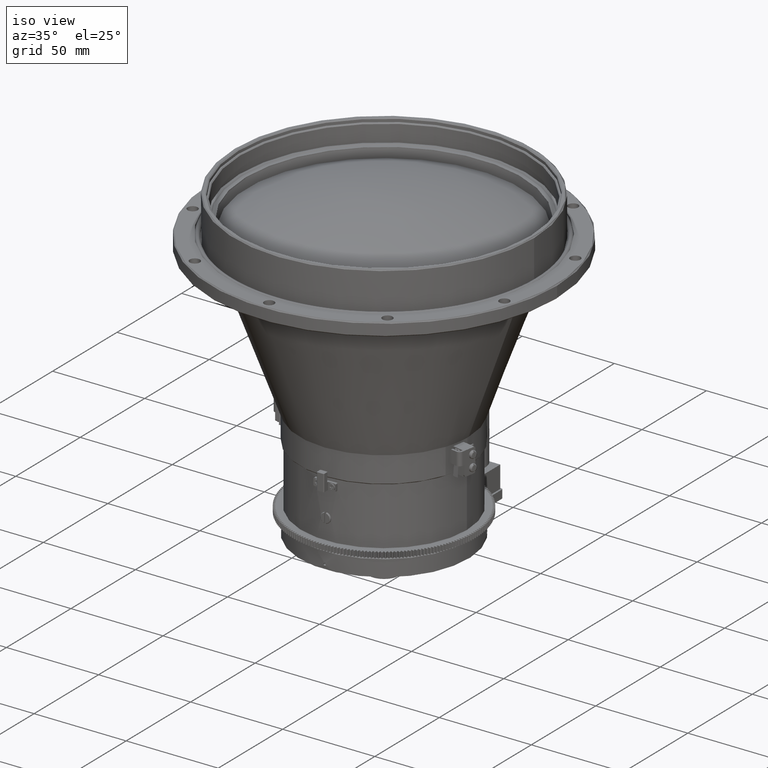
[diagram: clean part render]
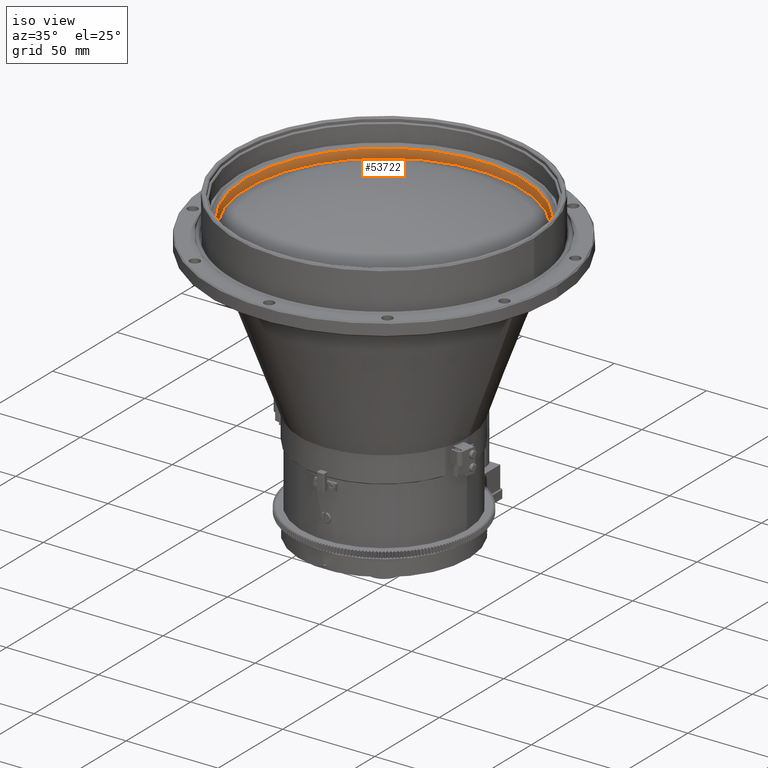
[diagram: same view with one face highlighted and labeled with its STEP entity id]
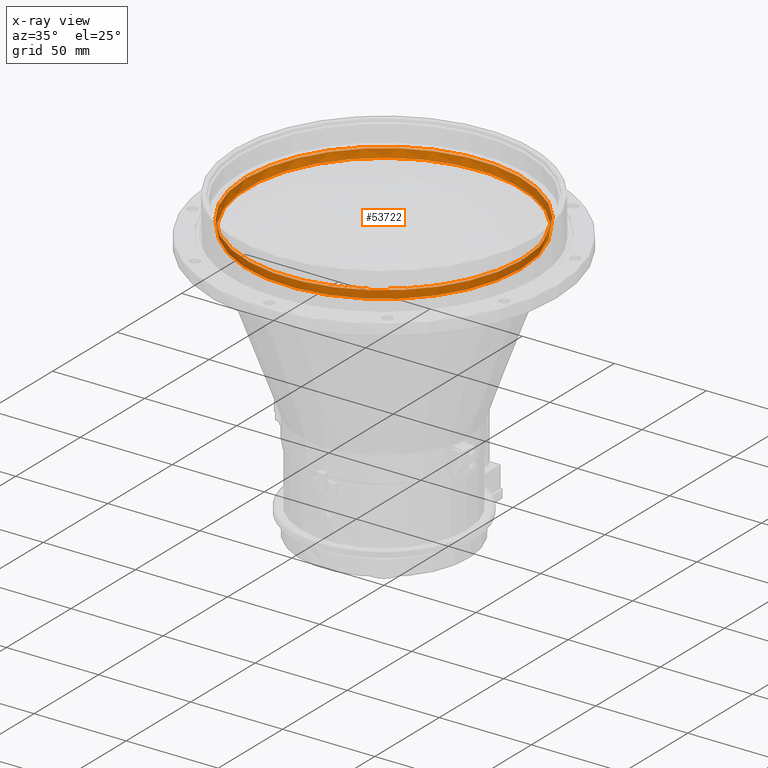
[diagram: x-ray of the same camera — body ghosted, the highlighted face saturated]
A machine part, iso view. The second image highlights one B-rep face of the part: STEP entity #53722.
The next image is the same camera in x-ray: the body ghosted, the highlighted face saturated — about 0% of this face is hidden behind the body in this view.
In plain terms, the highlighted conical surface has half-angle 8.393 deg.
Its self-contained STEP definition (entity closure, byte-faithful):
#2290 = VERTEX_POINT ( 'NONE', #6598 ) ;
#4469 = EDGE_CURVE ( 'NONE', #2290, #118596, #111276, .T. ) ;
#4581 = CARTESIAN_POINT ( 'NONE',  ( -75.00270542663358242, 0.4999905058496329491, -10.59591675109711240 ) ) ;
#5148 = EDGE_LOOP ( 'NONE', ( #100901 ) ) ;
#6598 = CARTESIAN_POINT ( 'NONE',  ( 75.00269861932846993, 0.5000631693755925866, -10.59609539321467864 ) ) ;
#6714 = B_SPLINE_CURVE_WITH_KNOTS ( 'NONE', 3,
 ( #21938, #77087, #75916, #86661 ),
 .UNSPECIFIED., .F., .F.,
 ( 4, 4 ),
 ( 0.000000000000000000, 1.000000000000000000 ),
 .UNSPECIFIED. ) ;
#6952 = CARTESIAN_POINT ( 'NONE',  ( 74.98787140005903495, 0.5000920502025483216, -10.72609505069669211 ) ) ;
#9740 = ORIENTED_EDGE ( 'NONE', *, *, #52431, .T. ) ;
#9960 = EDGE_LOOP ( 'NONE', ( #51677 ) ) ;
#11175 = EDGE_CURVE ( 'NONE', #118596, #46559, #116533, .T. ) ;
#12407 = CARTESIAN_POINT ( 'NONE',  ( -74.96600948718939605, 0.4999809680637991582, -10.85447161876259869 ) ) ;
#12504 = AXIS2_PLACEMENT_3D ( 'NONE', #86496, #22952, #59502 ) ;
#12903 = CIRCLE ( 'NONE', #45423, 75.03760365760280138 ) ;
#15323 = CARTESIAN_POINT ( 'NONE',  ( -74.94981966766651738, 0.4999999999999543698, -10.98398627726620624 ) ) ;
#19345 = DIRECTION ( 'NONE',  ( 1.000000000000000000, 0.000000000000000000, 0.000000000000000000 ) ) ;
#20249 = VERTEX_POINT ( 'NONE', #64727 ) ;
#20524 = EDGE_CURVE ( 'NONE', #46559, #115829, #31777, .T. ) ;
#21151 = CONICAL_SURFACE ( 'NONE', #99633, 75.03760365760280138, 0.1464916723753537375 ) ;
#21938 = CARTESIAN_POINT ( 'NONE',  ( -75.00269861932848414, -0.5000631693755610563, -10.59609539321468041 ) ) ;
#22869 = ORIENTED_EDGE ( 'NONE', *, *, #24414, .F. ) ;
#22952 = DIRECTION ( 'NONE',  ( 0.000000000000000000, 0.000000000000000000, 1.000000000000000000 ) ) ;
#23238 = VERTEX_POINT ( 'NONE', #89773 ) ;
#23832 = CARTESIAN_POINT ( 'NONE',  ( -75.00270542663358242, 0.4999905058496329491, -10.59591675109711240 ) ) ;
#24097 = ORIENTED_EDGE ( 'NONE', *, *, #4469, .F. ) ;
#24414 = EDGE_CURVE ( 'NONE', #20249, #30702, #50986, .T. ) ;
#24803 = AXIS2_PLACEMENT_3D ( 'NONE', #94113, #56328, #102480 ) ;
#28247 = CARTESIAN_POINT ( 'NONE',  ( 75.00269861932848414, -0.5000631693755699381, -10.59609539321468041 ) ) ;
#30702 = VERTEX_POINT ( 'NONE', #63217 ) ;
#31322 = EDGE_LOOP ( 'NONE', ( #22869, #9740, #89993, #99780 ) ) ;
#31777 = CIRCLE ( 'NONE', #79728, 74.95148743164070027 ) ;
#32745 = CARTESIAN_POINT ( 'NONE',  ( -74.94981966766651738, 0.4999999999999543698, -10.98398627726620624 ) ) ;
#33502 = DIRECTION ( 'NONE',  ( 0.000000000000000000, 0.000000000000000000, 1.000000000000000000 ) ) ;
#35720 = CARTESIAN_POINT ( 'NONE',  ( 74.96884607318615679, 0.4999651708213365686, -10.85504066383007427 ) ) ;
#36260 = DIRECTION ( 'NONE',  ( 1.000000000000000000, 0.000000000000000000, 0.000000000000000000 ) ) ;
#44737 = CARTESIAN_POINT ( 'NONE',  ( 74.94982020698880376, 0.4999191457199188005, -10.98398627711469722 ) ) ;
#44803 = CARTESIAN_POINT ( 'NONE',  ( 74.94982020701108638, -0.4999191457200425348, -10.98398627696348484 ) ) ;
#45423 = AXIS2_PLACEMENT_3D ( 'NONE', #98279, #33502, #116804 ) ;
#46559 = VERTEX_POINT ( 'NONE', #15323 ) ;
#48962 = CARTESIAN_POINT ( 'NONE',  ( -74.98219930693394986, 0.4999618538105425891, -10.72495696025843159 ) ) ;
#50986 = CIRCLE ( 'NONE', #104652, 75.00875113978989361 ) ;
#51246 = DIRECTION ( 'NONE',  ( 1.000000000000000000, 8.881784197001252323E-16, 1.157230853863278617E-16 ) ) ;
#51333 = CARTESIAN_POINT ( 'NONE',  ( 75.00269861932846993, 0.5000631693755925866, -10.59609539321467864 ) ) ;
#51677 = ORIENTED_EDGE ( 'NONE', *, *, #66884, .F. ) ;
#51849 = CARTESIAN_POINT ( 'NONE',  ( 0.000000000000000000, 0.000000000000000000, -10.98398627726593446 ) ) ;
#52431 = EDGE_CURVE ( 'NONE', #20249, #76139, #6714, .T. ) ;
#53046 = DIRECTION ( 'NONE',  ( 0.000000000000000000, 0.000000000000000000, 1.000000000000000000 ) ) ;
#53182 = VERTEX_POINT ( 'NONE', #98170 ) ;
#53722 = ADVANCED_FACE ( 'NONE', ( #74644, #102194, #56614, #101021 ), #21151, .F. ) ;
#54274 = DIRECTION ( 'NONE',  ( 1.000000000000000000, 0.000000000000000000, 0.000000000000000000 ) ) ;
#56328 = DIRECTION ( 'NONE',  ( -0.000000000000000000, -0.000000000000000000, -1.000000000000000000 ) ) ;
#56614 = FACE_OUTER_BOUND ( 'NONE', #5148, .T. ) ;
#56967 = B_SPLINE_CURVE_WITH_KNOTS ( 'NONE', 3,
 ( #65994, #110374, #73828, #28247 ),
 .UNSPECIFIED., .F., .F.,
 ( 4, 4 ),
 ( 0.000000000000000000, 1.000000000000000000 ),
 .UNSPECIFIED. ) ;
#57145 = EDGE_CURVE ( 'NONE', #53182, #53182, #12903, .T. ) ;
#59502 = DIRECTION ( 'NONE',  ( 1.000000000000000000, 0.000000000000000000, 0.000000000000000000 ) ) ;
#63217 = CARTESIAN_POINT ( 'NONE',  ( 75.00269861932848414, -0.5000631693755699381, -10.59609539321468041 ) ) ;
#63849 = DIRECTION ( 'NONE',  ( 0.000000000000000000, 0.000000000000000000, 1.000000000000000000 ) ) ;
#64727 = CARTESIAN_POINT ( 'NONE',  ( -75.00269861932848414, -0.5000631693755610563, -10.59609539321468041 ) ) ;
#65038 = CARTESIAN_POINT ( 'NONE',  ( 0.000000000000000000, 0.000000000000000000, -10.40033992486999281 ) ) ;
#65994 = CARTESIAN_POINT ( 'NONE',  ( 74.94982020701108638, -0.4999191457200425348, -10.98398627696348484 ) ) ;
#66134 = B_SPLINE_CURVE_WITH_KNOTS ( 'NONE', 3,
 ( #51333, #6952, #35720, #44737 ),
 .UNSPECIFIED., .F., .F.,
 ( 4, 4 ),
 ( 0.000000000000000000, 1.000000000000000000 ),
 .UNSPECIFIED. ) ;
#66655 = DIRECTION ( 'NONE',  ( 0.000000000000000000, 0.000000000000000000, 1.000000000000000000 ) ) ;
#66884 = EDGE_CURVE ( 'NONE', #23238, #23238, #89099, .T. ) ;
#73828 = CARTESIAN_POINT ( 'NONE',  ( 74.98787140005903495, -0.5000920502025287817, -10.72609505069669211 ) ) ;
#74577 = VERTEX_POINT ( 'NONE', #44803 ) ;
#74644 = FACE_BOUND ( 'NONE', #9960, .T. ) ;
#75916 = CARTESIAN_POINT ( 'NONE',  ( -74.96884607318628468, -0.4999651708212901613, -10.85504066382926069 ) ) ;
#76139 = VERTEX_POINT ( 'NONE', #77847 ) ;
#77087 = CARTESIAN_POINT ( 'NONE',  ( -74.98787140005909180, -0.5000920502025015812, -10.72609505069628355 ) ) ;
#77292 = EDGE_CURVE ( 'NONE', #2290, #115829, #66134, .T. ) ;
#77847 = CARTESIAN_POINT ( 'NONE',  ( -74.94982020701118586, -0.4999191457200322097, -10.98398627696287377 ) ) ;
#78754 = AXIS2_PLACEMENT_3D ( 'NONE', #100998, #53046, #36260 ) ;
#79728 = AXIS2_PLACEMENT_3D ( 'NONE', #51849, #89020, #51246 ) ;
#80719 = EDGE_CURVE ( 'NONE', #74577, #30702, #56967, .T. ) ;
#85499 = CARTESIAN_POINT ( 'NONE',  ( 74.94982020698880376, 0.4999191457199188005, -10.98398627711469722 ) ) ;
#86496 = CARTESIAN_POINT ( 'NONE',  ( 0.000000000000000000, 0.000000000000000000, -15.50185395803860189 ) ) ;
#86661 = CARTESIAN_POINT ( 'NONE',  ( -74.94982020701118586, -0.4999191457200322097, -10.98398627696287377 ) ) ;
#88258 = ORIENTED_EDGE ( 'NONE', *, *, #11175, .F. ) ;
#89020 = DIRECTION ( 'NONE',  ( -0.000000000000000000, -0.000000000000000000, -1.000000000000000000 ) ) ;
#89099 = CIRCLE ( 'NONE', #12504, 74.28488219635204359 ) ;
#89773 = CARTESIAN_POINT ( 'NONE',  ( 74.28488219635204359, 0.000000000000000000, -15.50185395803860189 ) ) ;
#89993 = ORIENTED_EDGE ( 'NONE', *, *, #117551, .F. ) ;
#92246 = EDGE_LOOP ( 'NONE', ( #92857, #88258, #24097, #102259 ) ) ;
#92857 = ORIENTED_EDGE ( 'NONE', *, *, #20524, .F. ) ;
#94113 = CARTESIAN_POINT ( 'NONE',  ( 0.000000000000000000, 0.000000000000000000, -10.98398627696350971 ) ) ;
#94257 = CARTESIAN_POINT ( 'NONE',  ( 0.000000000000000000, 0.000000000000000000, -10.59588573044628923 ) ) ;
#98170 = CARTESIAN_POINT ( 'NONE',  ( 75.03760365760280138, 0.000000000000000000, -10.40033992486999459 ) ) ;
#98279 = CARTESIAN_POINT ( 'NONE',  ( 0.000000000000000000, 0.000000000000000000, -10.40033992486999459 ) ) ;
#99633 = AXIS2_PLACEMENT_3D ( 'NONE', #65038, #63849, #54274 ) ;
#99780 = ORIENTED_EDGE ( 'NONE', *, *, #80719, .T. ) ;
#100901 = ORIENTED_EDGE ( 'NONE', *, *, #57145, .T. ) ;
#100998 = CARTESIAN_POINT ( 'NONE',  ( 0.000000000000000000, 0.000000000000000000, -10.59588573044634074 ) ) ;
#101021 = FACE_BOUND ( 'NONE', #31322, .T. ) ;
#102194 = FACE_BOUND ( 'NONE', #92246, .T. ) ;
#102259 = ORIENTED_EDGE ( 'NONE', *, *, #77292, .T. ) ;
#102480 = DIRECTION ( 'NONE',  ( 1.000000000000000000, 0.000000000000000000, -5.786154269312947491E-16 ) ) ;
#104652 = AXIS2_PLACEMENT_3D ( 'NONE', #94257, #66655, #19345 ) ;
#105237 = CIRCLE ( 'NONE', #24803, 74.95148743168532235 ) ;
#110374 = CARTESIAN_POINT ( 'NONE',  ( 74.96884607318615679, -0.4999651708213169732, -10.85504066383007427 ) ) ;
#111276 = CIRCLE ( 'NONE', #78754, 75.00875113978987940 ) ;
#115829 = VERTEX_POINT ( 'NONE', #85499 ) ;
#116533 = B_SPLINE_CURVE_WITH_KNOTS ( 'NONE', 3,
 ( #4581, #48962, #12407, #32745 ),
 .UNSPECIFIED., .F., .F.,
 ( 4, 4 ),
 ( 0.000000000000000000, 1.000000000000000000 ),
 .UNSPECIFIED. ) ;
#116804 = DIRECTION ( 'NONE',  ( 1.000000000000000000, 0.000000000000000000, 0.000000000000000000 ) ) ;
#117551 = EDGE_CURVE ( 'NONE', #74577, #76139, #105237, .T. ) ;
#118596 = VERTEX_POINT ( 'NONE', #23832 ) ;